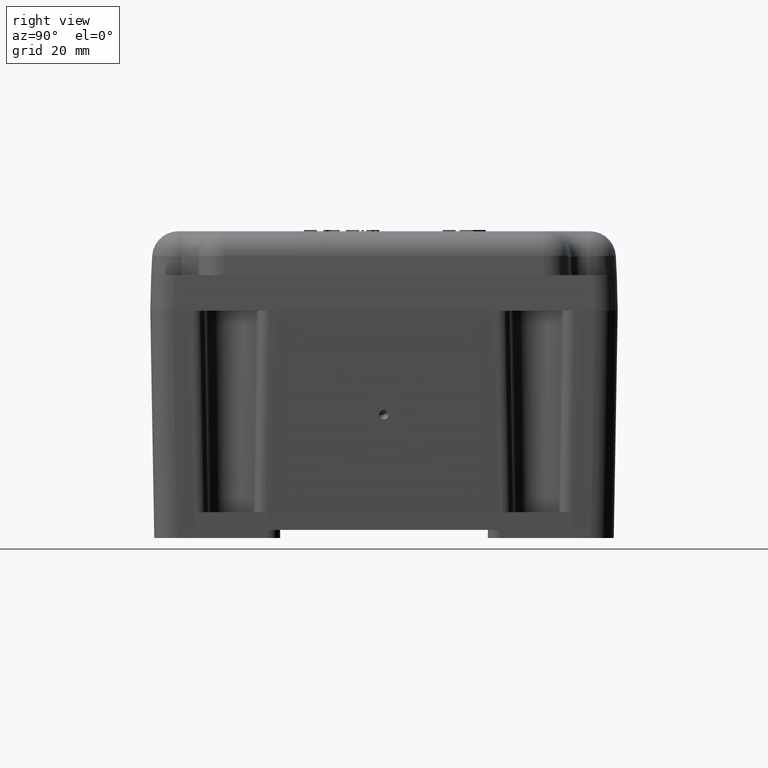
[diagram: clean part render]
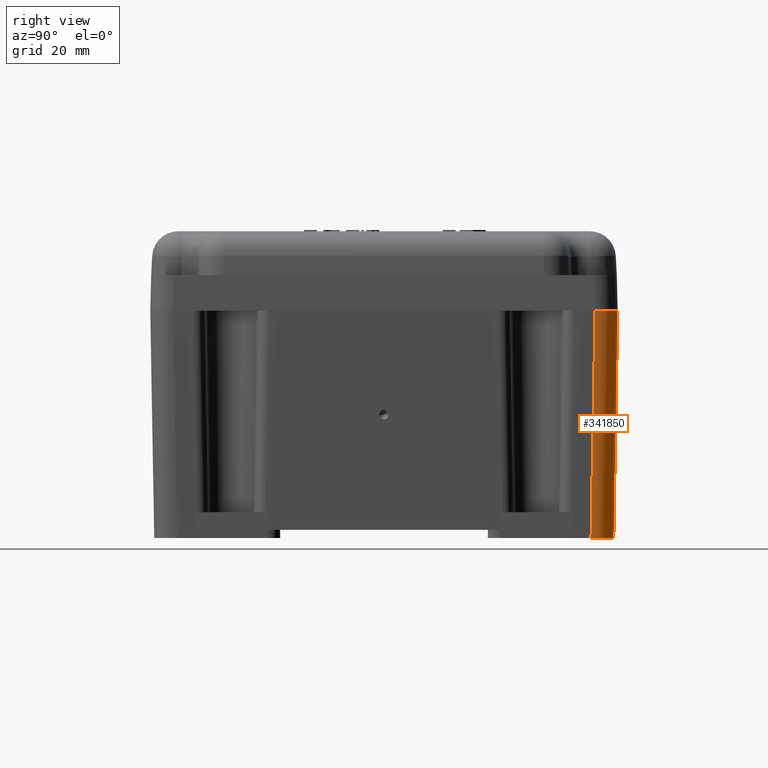
[diagram: same view with one face highlighted and labeled with its STEP entity id]
A machine part, right view. The second image highlights one B-rep face of the part: STEP entity #341850.
In plain terms, the highlighted cylindrical surface (edge-blend (fillet) strip) has radius 7 mm, axis along (-0.0174, -0.0174, -0.9997).
Its self-contained STEP definition (entity closure, byte-faithful):
#339380=CARTESIAN_POINT('',(-37.2999999999929,164.779211588932,
-12.221854545032));
#339390=VERTEX_POINT('',#339380);
#339420=CARTESIAN_POINT('',(-9.9221668450612,165.257093444241,
-11.7439726897109));
#339430=DIRECTION('',(-0.99969545988189,-0.0174497491605356,
-0.0174497491607113));
#339440=VECTOR('',#339430,1.);
#339450=LINE('',#339420,#339440);
#339460=CARTESIAN_POINT('',(32.6999999999899,166.001066133897,
-11.0000000000551));
#339470=VERTEX_POINT('',#339460);
#339480=EDGE_CURVE('',#339470,#339390,#339450,.T.);
#341530=CARTESIAN_POINT('',(-9.80000000000001,165.257093444241,
-18.7429065558056));
#341540=DIRECTION('',(-0.99969545988189,-0.0174497491605356,
-0.0174497491607113));
#341550=DIRECTION('',(-0.017452406437312,-1.86874964741131E-16,
0.999847695156391));
#341560=AXIS2_PLACEMENT_3D('',#341530,#341540,#341550);
#341570=CYLINDRICAL_SURFACE('',#341560,7.);
#341580=CARTESIAN_POINT('',(-9.92216684505996,172.256027310336,
-18.7429065558061));
#341590=DIRECTION('',(-0.99969545988189,-0.0174497491605356,
-0.0174497491607113));
#341600=VECTOR('',#341590,1.);
#341610=LINE('',#341580,#341600);
#341620=CARTESIAN_POINT('',(32.6999999999905,172.999999999992,
-17.998933866143));
#341630=VERTEX_POINT('',#341620);
#341640=CARTESIAN_POINT('',(-37.2999999999916,171.778145455027,
-19.2207884111201));
#341650=VERTEX_POINT('',#341640);
#341660=EDGE_CURVE('',#341630,#341650,#341610,.T.);
#341670=ORIENTED_EDGE('',*,*,#341660,.T.);
#341680=CARTESIAN_POINT('',(32.69999999999,165.998933703684,
-18.0010662963553));
#341690=DIRECTION('',(1.,-7.482383661641E-14,1.50731761487243E-16));
#341700=DIRECTION('',(5.28018588150272E-14,0.707106781184644,
0.707106781188451));
#341710=AXIS2_PLACEMENT_3D('',#341680,#341690,#341700);
#341720=ELLIPSE('',#341710,7.00213243023734,7.);
#341730=EDGE_CURVE('',#341630,#339470,#341720,.T.);
#341740=ORIENTED_EDGE('',*,*,#341730,.F.);
#341750=ORIENTED_EDGE('',*,*,#339480,.F.);
#341760=CARTESIAN_POINT('',(-37.2999999999927,164.77707915872,
-19.2229208413323));
#341770=DIRECTION('',(-1.,1.48149733934204E-13,-2.85724411918955E-14));
#341780=DIRECTION('',(8.45539145740312E-14,0.707106781186637,
0.707106781186458));
#341790=AXIS2_PLACEMENT_3D('',#341760,#341770,#341780);
#341800=ELLIPSE('',#341790,7.00213243023734,7.);
#341810=EDGE_CURVE('',#339390,#341650,#341800,.T.);
#341820=ORIENTED_EDGE('',*,*,#341810,.F.);
#341830=EDGE_LOOP('',(#341820,#341750,#341740,#341670));
#341840=FACE_OUTER_BOUND('',#341830,.T.);
#341850=ADVANCED_FACE('',(#341840),#341570,.T.);